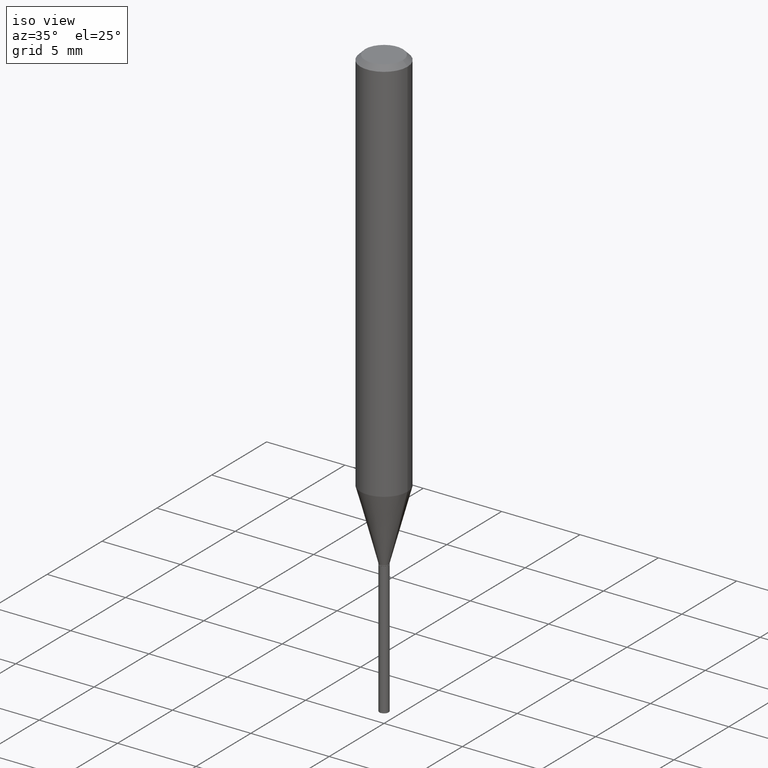
[diagram: clean part render]
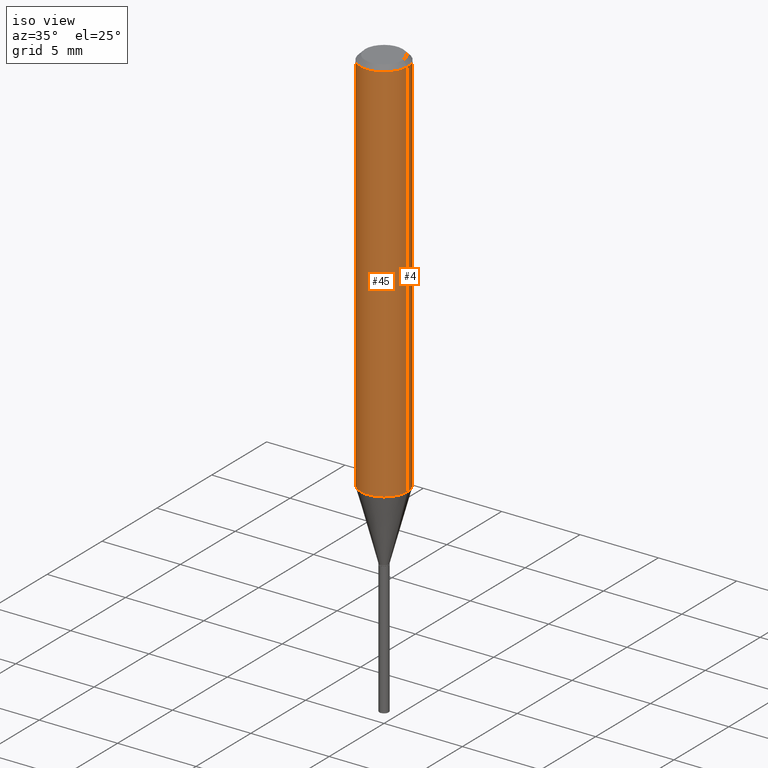
[diagram: same view with one multi-face feature highlighted, each face labeled with its STEP entity id]
A machine part, iso view. The highlighted faces form ONE feature: a constant-radius fillet chain: 2 tangent blend faces with common blend radius 1.4999 mm. The faces share edges in the B-rep.
Their STEP definitions:
[1] entity #4 (Cylinder):
#1 = VERTEX_POINT ( 'NONE', #415 ) ;
#4 = ADVANCED_FACE ( 'NONE', ( #240 ), #190, .T. ) ;
#8 = DIRECTION ( 'NONE',  ( -2.445468806185136597E-29, 3.491481338843145583E-15, 1.000000000000000000 ) ) ;
#10 = EDGE_CURVE ( 'NONE', #300, #1, #203, .T. ) ;
#37 = CARTESIAN_POINT ( 'NONE',  ( 0.05905000000000011628, -3.823221607293418566E-15, -0.9769141891808567069 ) ) ;
#48 = VECTOR ( 'NONE', #281, 39.37007874015748143 ) ;
#59 = DIRECTION ( 'NONE',  ( -2.445468806185136877E-29, 3.491481338843145188E-15, 1.000000000000000000 ) ) ;
#64 = VERTEX_POINT ( 'NONE', #158 ) ;
#75 = DIRECTION ( 'NONE',  ( 1.000000000000000000, -6.982962677686266711E-15, 0.000000000000000000 ) ) ;
#93 = LINE ( 'NONE', #213, #301 ) ;
#111 = DIRECTION ( 'NONE',  ( -2.445468806185136597E-29, 3.491481338843145583E-15, 1.000000000000000000 ) ) ;
#122 = CARTESIAN_POINT ( 'NONE',  ( -0.05905000000000006077, 4.195754854663395916E-16, -2.904631170795524694E-30 ) ) ;
#155 = LINE ( 'NONE', #122, #48 ) ;
#158 = CARTESIAN_POINT ( 'NONE',  ( -0.05904999999999999832, -1.306480542427550405E-15, -0.01181000000000007218 ) ) ;
#173 = AXIS2_PLACEMENT_3D ( 'NONE', #305, #264, #225 ) ;
#190 = CYLINDRICAL_SURFACE ( 'NONE', #392, 0.05905000000000006077 ) ;
#203 = CIRCLE ( 'NONE', #258, 0.05905000000000011628 ) ;
#206 = EDGE_CURVE ( 'NONE', #261, #64, #361, .T. ) ;
#213 = CARTESIAN_POINT ( 'NONE',  ( 0.05905000000000006077, -4.123439461173744764E-16, 2.879382386107503023E-30 ) ) ;
#225 = DIRECTION ( 'NONE',  ( 1.000000000000000000, -6.982962677686266711E-15, 0.000000000000000000 ) ) ;
#230 = EDGE_LOOP ( 'NONE', ( #351, #424, #344, #309 ) ) ;
#239 = EDGE_CURVE ( 'NONE', #300, #261, #93, .T. ) ;
#240 = FACE_OUTER_BOUND ( 'NONE', #230, .T. ) ;
#258 = AXIS2_PLACEMENT_3D ( 'NONE', #413, #111, #75 ) ;
#260 = CARTESIAN_POINT ( 'NONE',  ( 0.05904999999999999832, -4.535783407291118600E-16, -0.01181000000000007218 ) ) ;
#261 = VERTEX_POINT ( 'NONE', #260 ) ;
#264 = DIRECTION ( 'NONE',  ( -2.445468806185136597E-29, 3.491481338843145583E-15, 1.000000000000000000 ) ) ;
#281 = DIRECTION ( 'NONE',  ( -2.445468806185136877E-29, 3.491481338843145188E-15, 1.000000000000000000 ) ) ;
#300 = VERTEX_POINT ( 'NONE', #37 ) ;
#301 = VECTOR ( 'NONE', #59, 39.37007874015748143 ) ;
#305 = CARTESIAN_POINT ( 'NONE',  ( 2.888098660104664204E-31, -4.123439461173780263E-17, -0.01181000000000007218 ) ) ;
#309 = ORIENTED_EDGE ( 'NONE', *, *, #239, .F. ) ;
#344 = ORIENTED_EDGE ( 'NONE', *, *, #206, .F. ) ;
#346 = CARTESIAN_POINT ( 'NONE',  ( 0.000000000000000000, 0.000000000000000000, 0.000000000000000000 ) ) ;
#351 = ORIENTED_EDGE ( 'NONE', *, *, #10, .T. ) ;
#361 = CIRCLE ( 'NONE', #173, 0.05904999999999999832 ) ;
#392 = AXIS2_PLACEMENT_3D ( 'NONE', #346, #8, #455 ) ;
#413 = CARTESIAN_POINT ( 'NONE',  ( 2.389013175961430346E-29, -3.410877661176043645E-15, -0.9769141891808567069 ) ) ;
#415 = CARTESIAN_POINT ( 'NONE',  ( -0.05905000000000011628, -2.991302175709703364E-15, -0.9769141891808567069 ) ) ;
#424 = ORIENTED_EDGE ( 'NONE', *, *, #437, .T. ) ;
#437 = EDGE_CURVE ( 'NONE', #1, #64, #155, .T. ) ;
#455 = DIRECTION ( 'NONE',  ( 1.000000000000000000, -6.982962677686266711E-15, 4.876176775795935793E-29 ) ) ;
[2] entity #45 (Cylinder):
#1 = VERTEX_POINT ( 'NONE', #415 ) ;
#14 = DIRECTION ( 'NONE',  ( 1.000000000000000000, -6.982962677686266711E-15, 0.000000000000000000 ) ) ;
#18 = CIRCLE ( 'NONE', #469, 0.05905000000000011628 ) ;
#19 = DIRECTION ( 'NONE',  ( -2.445468806185136597E-29, 3.491481338843145583E-15, 1.000000000000000000 ) ) ;
#37 = CARTESIAN_POINT ( 'NONE',  ( 0.05905000000000011628, -3.823221607293418566E-15, -0.9769141891808567069 ) ) ;
#45 = ADVANCED_FACE ( 'NONE', ( #198 ), #405, .T. ) ;
#48 = VECTOR ( 'NONE', #281, 39.37007874015748143 ) ;
#55 = CIRCLE ( 'NONE', #393, 0.05904999999999999832 ) ;
#59 = DIRECTION ( 'NONE',  ( -2.445468806185136877E-29, 3.491481338843145188E-15, 1.000000000000000000 ) ) ;
#64 = VERTEX_POINT ( 'NONE', #158 ) ;
#93 = LINE ( 'NONE', #213, #301 ) ;
#110 = DIRECTION ( 'NONE',  ( 1.000000000000000000, -6.982962677686266711E-15, 4.876176775795935793E-29 ) ) ;
#115 = ORIENTED_EDGE ( 'NONE', *, *, #239, .T. ) ;
#122 = CARTESIAN_POINT ( 'NONE',  ( -0.05905000000000006077, 4.195754854663395916E-16, -2.904631170795524694E-30 ) ) ;
#152 = EDGE_LOOP ( 'NONE', ( #153, #407, #115, #383 ) ) ;
#153 = ORIENTED_EDGE ( 'NONE', *, *, #437, .F. ) ;
#155 = LINE ( 'NONE', #122, #48 ) ;
#158 = CARTESIAN_POINT ( 'NONE',  ( -0.05904999999999999832, -1.306480542427550405E-15, -0.01181000000000007218 ) ) ;
#192 = CARTESIAN_POINT ( 'NONE',  ( 2.888098660104664204E-31, -4.123439461173780263E-17, -0.01181000000000007218 ) ) ;
#193 = AXIS2_PLACEMENT_3D ( 'NONE', #223, #310, #110 ) ;
#198 = FACE_OUTER_BOUND ( 'NONE', #152, .T. ) ;
#209 = CARTESIAN_POINT ( 'NONE',  ( 2.389013175961430346E-29, -3.410877661176043645E-15, -0.9769141891808567069 ) ) ;
#213 = CARTESIAN_POINT ( 'NONE',  ( 0.05905000000000006077, -4.123439461173744764E-16, 2.879382386107503023E-30 ) ) ;
#223 = CARTESIAN_POINT ( 'NONE',  ( 0.000000000000000000, 0.000000000000000000, 0.000000000000000000 ) ) ;
#239 = EDGE_CURVE ( 'NONE', #300, #261, #93, .T. ) ;
#260 = CARTESIAN_POINT ( 'NONE',  ( 0.05904999999999999832, -4.535783407291118600E-16, -0.01181000000000007218 ) ) ;
#261 = VERTEX_POINT ( 'NONE', #260 ) ;
#281 = DIRECTION ( 'NONE',  ( -2.445468806185136877E-29, 3.491481338843145188E-15, 1.000000000000000000 ) ) ;
#300 = VERTEX_POINT ( 'NONE', #37 ) ;
#301 = VECTOR ( 'NONE', #59, 39.37007874015748143 ) ;
#310 = DIRECTION ( 'NONE',  ( -2.445468806185136597E-29, 3.491481338843145583E-15, 1.000000000000000000 ) ) ;
#327 = EDGE_CURVE ( 'NONE', #64, #261, #55, .T. ) ;
#383 = ORIENTED_EDGE ( 'NONE', *, *, #327, .F. ) ;
#393 = AXIS2_PLACEMENT_3D ( 'NONE', #192, #412, #14 ) ;
#405 = CYLINDRICAL_SURFACE ( 'NONE', #193, 0.05905000000000006077 ) ;
#407 = ORIENTED_EDGE ( 'NONE', *, *, #471, .T. ) ;
#412 = DIRECTION ( 'NONE',  ( -2.445468806185136597E-29, 3.491481338843145583E-15, 1.000000000000000000 ) ) ;
#415 = CARTESIAN_POINT ( 'NONE',  ( -0.05905000000000011628, -2.991302175709703364E-15, -0.9769141891808567069 ) ) ;
#421 = DIRECTION ( 'NONE',  ( 1.000000000000000000, -6.982962677686266711E-15, 0.000000000000000000 ) ) ;
#437 = EDGE_CURVE ( 'NONE', #1, #64, #155, .T. ) ;
#469 = AXIS2_PLACEMENT_3D ( 'NONE', #209, #19, #421 ) ;
#471 = EDGE_CURVE ( 'NONE', #1, #300, #18, .T. ) ;